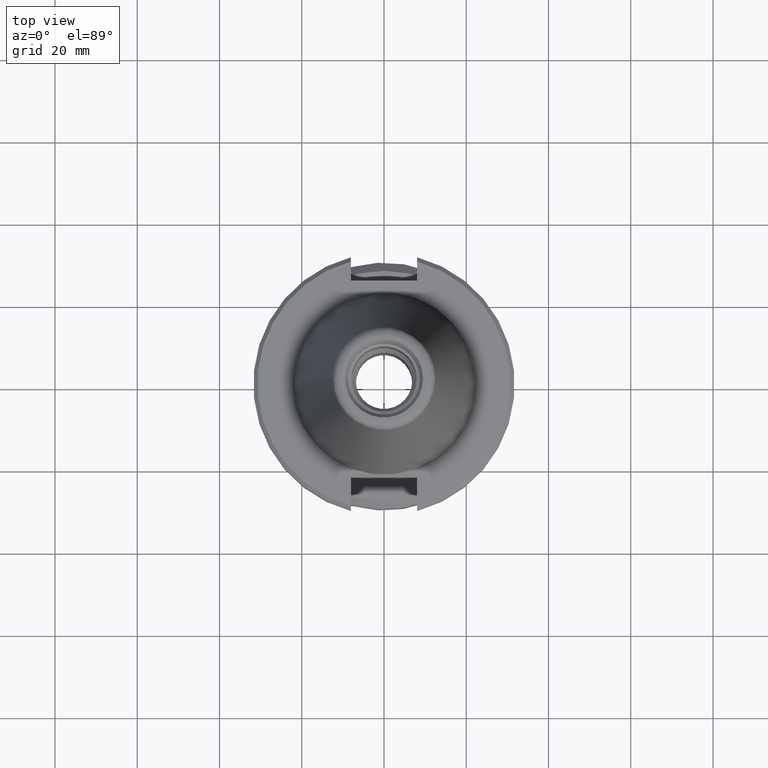
[diagram: clean part render]
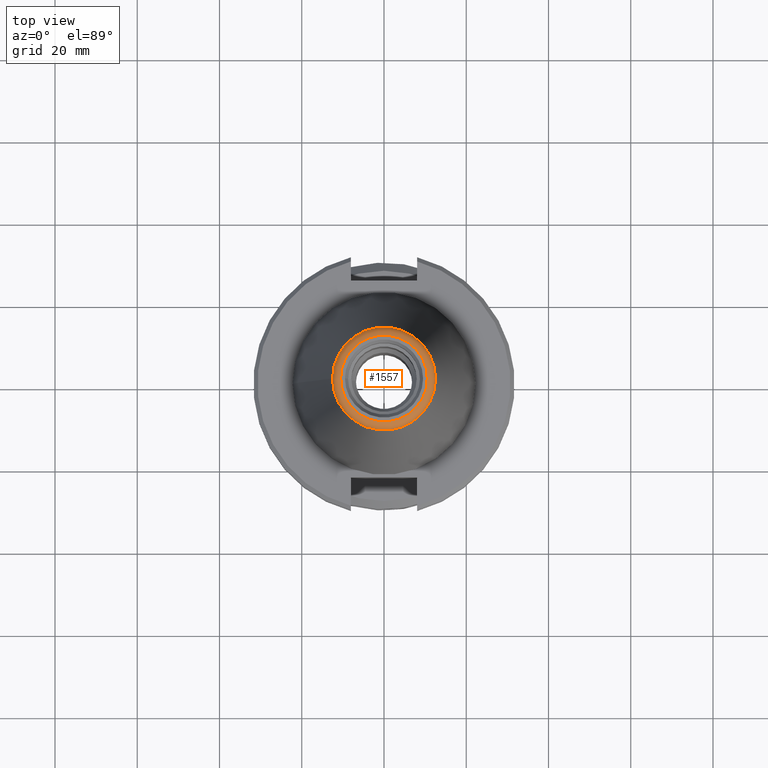
[diagram: same view with one face highlighted and labeled with its STEP entity id]
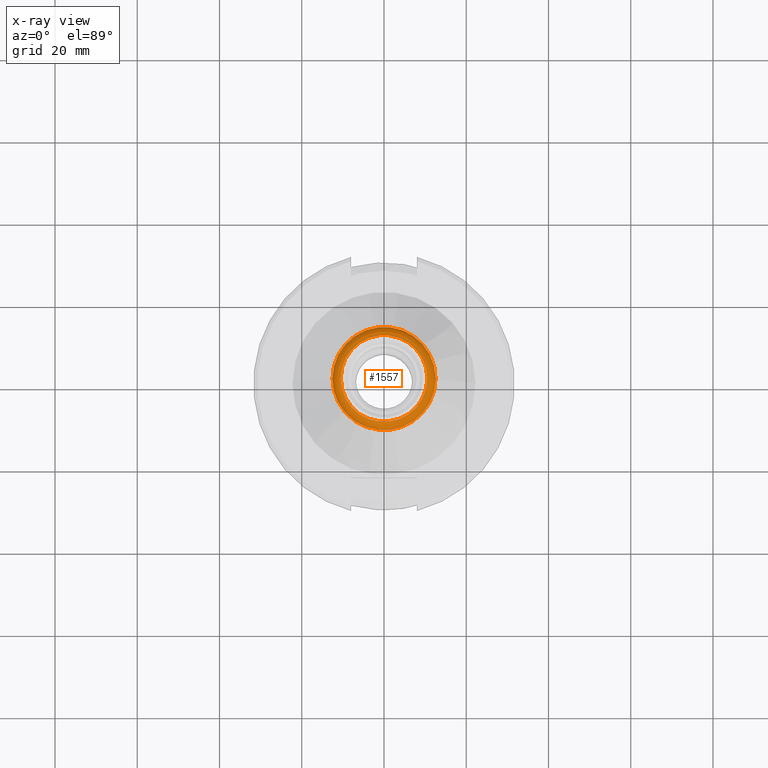
[diagram: x-ray of the same camera — body ghosted, the highlighted face saturated]
A machine part, top view. The second image highlights one B-rep face of the part: STEP entity #1557.
The next image is the same camera in x-ray: the body ghosted, the highlighted face saturated — about 0% of this face is hidden behind the body in this view.
In plain terms, the highlighted toroidal blend (fillet) surface has major radius 10.542 mm and minor (blend) radius 2 mm.
Its self-contained STEP definition (entity closure, byte-faithful):
#82 = FACE_OUTER_BOUND ( 'NONE', #1357, .T. ) ;
#157 = DIRECTION ( 'NONE',  ( -0.000000000000000000, -0.000000000000000000, -1.000000000000000000 ) ) ;
#167 = CARTESIAN_POINT ( 'NONE',  ( -12.52106618865075660, 1.483994170672545651E-15, 66.53861223283045945 ) ) ;
#729 = DIRECTION ( 'NONE',  ( -1.000000000000000000, 0.000000000000000000, 0.000000000000000000 ) ) ;
#1029 = DIRECTION ( 'NONE',  ( -0.000000000000000000, -0.000000000000000000, -1.000000000000000000 ) ) ;
#1216 = CARTESIAN_POINT ( 'NONE',  ( -10.54199999999999626, 1.483994170672545651E-15, 68.24999999999998579 ) ) ;
#1263 = VERTEX_POINT ( 'NONE', #167 ) ;
#1357 = EDGE_LOOP ( 'NONE', ( #2813 ) ) ;
#1363 = AXIS2_PLACEMENT_3D ( 'NONE', #3418, #157, #3764 ) ;
#1437 = DIRECTION ( 'NONE',  ( -1.000000000000000000, 0.000000000000000000, 0.000000000000000000 ) ) ;
#1446 = DIRECTION ( 'NONE',  ( -0.000000000000000000, -0.000000000000000000, -1.000000000000000000 ) ) ;
#1551 = AXIS2_PLACEMENT_3D ( 'NONE', #4313, #1029, #1437 ) ;
#1557 = ADVANCED_FACE ( 'NONE', ( #2245, #82 ), #3464, .T. ) ;
#2245 = FACE_OUTER_BOUND ( 'NONE', #3980, .T. ) ;
#2537 = ORIENTED_EDGE ( 'NONE', *, *, #4322, .T. ) ;
#2813 = ORIENTED_EDGE ( 'NONE', *, *, #3666, .F. ) ;
#2978 = CIRCLE ( 'NONE', #1551, 10.54199999999999626 ) ;
#3045 = VERTEX_POINT ( 'NONE', #1216 ) ;
#3321 = CARTESIAN_POINT ( 'NONE',  ( 0.000000000000000000, 1.734723475976807094E-15, 66.24999999999998579 ) ) ;
#3418 = CARTESIAN_POINT ( 'NONE',  ( 0.000000000000000000, 1.483994170672545651E-15, 66.53861223283045945 ) ) ;
#3464 = TOROIDAL_SURFACE ( 'NONE', #4222, 10.54199999999999626, 2.000000000000007105 ) ;
#3666 = EDGE_CURVE ( 'NONE', #1263, #1263, #4282, .T. ) ;
#3764 = DIRECTION ( 'NONE',  ( -1.000000000000000000, 0.000000000000000000, 0.000000000000000000 ) ) ;
#3980 = EDGE_LOOP ( 'NONE', ( #2537 ) ) ;
#4222 = AXIS2_PLACEMENT_3D ( 'NONE', #3321, #1446, #729 ) ;
#4282 = CIRCLE ( 'NONE', #1363, 12.52106618865075660 ) ;
#4313 = CARTESIAN_POINT ( 'NONE',  ( 0.000000000000000000, 1.483994170672545651E-15, 68.24999999999998579 ) ) ;
#4322 = EDGE_CURVE ( 'NONE', #3045, #3045, #2978, .T. ) ;